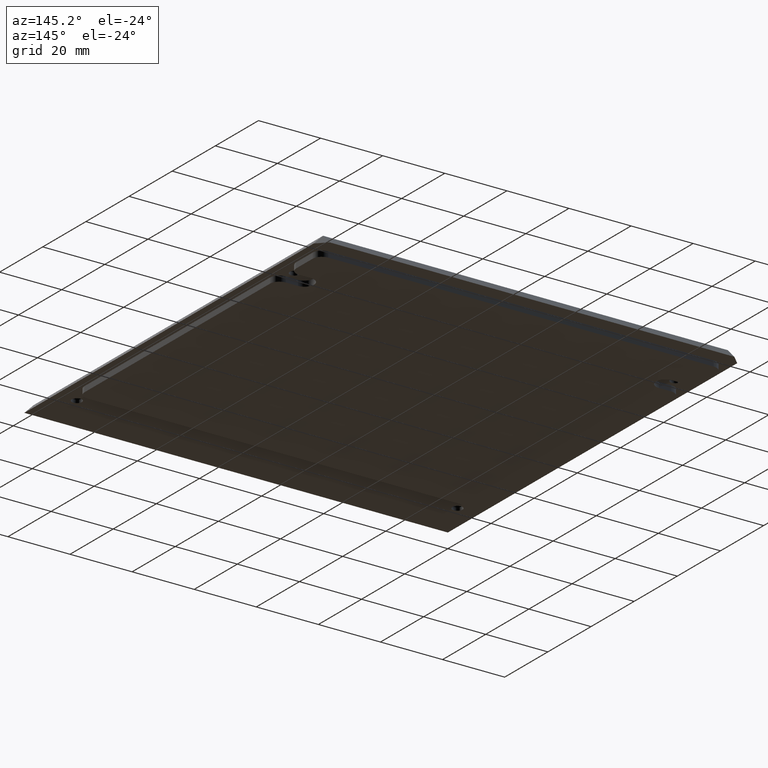
[diagram: clean part render]
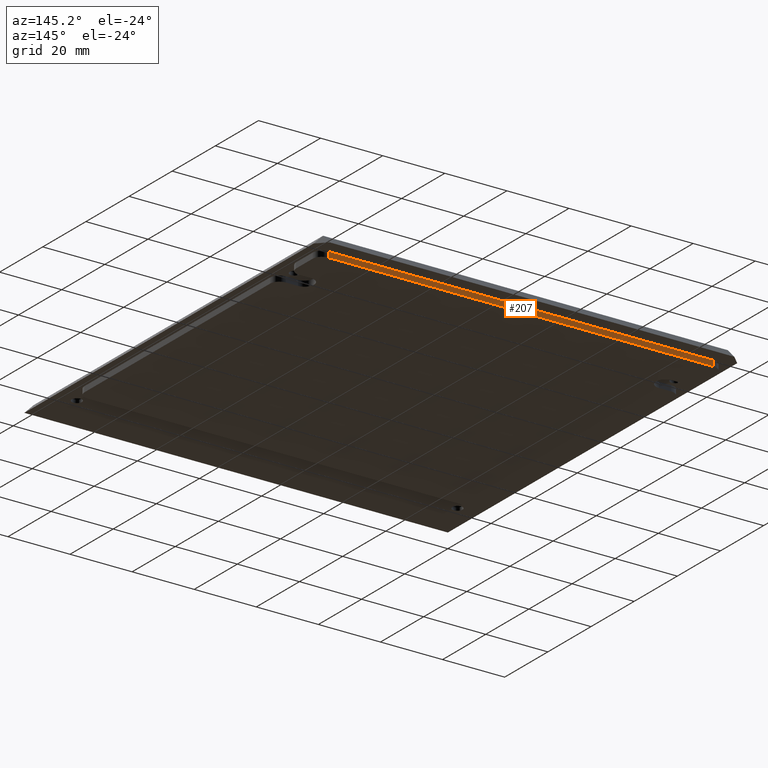
[diagram: same view with one face highlighted and labeled with its STEP entity id]
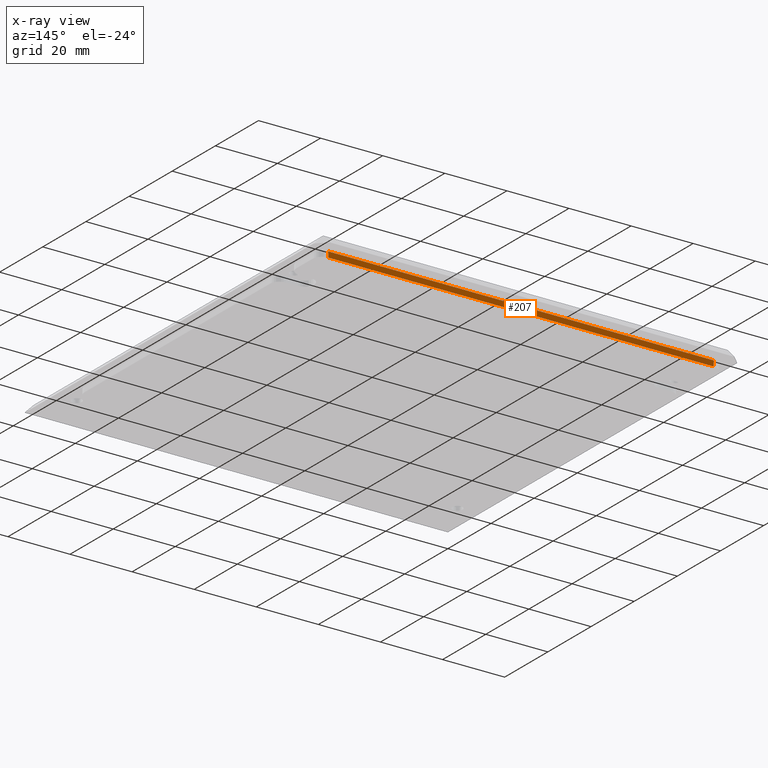
[diagram: x-ray of the same camera — body ghosted, the highlighted face saturated]
A machine part, auxiliary view. The second image highlights one B-rep face of the part: STEP entity #207.
The next image is the same camera in x-ray: the body ghosted, the highlighted face saturated — about 0% of this face is hidden behind the body in this view.
In plain terms, the highlighted planar face has unit normal (0, -1, -0).
Its self-contained STEP definition (entity closure, byte-faithful):
#39 = CARTESIAN_POINT ( 'NONE',  ( 130.2499999999999700, 132.0500000000000100, -4.780000000000000200 ) ) ;
#41 = EDGE_CURVE ( 'NONE', #533, #916, #853, .T. ) ;
#61 = AXIS2_PLACEMENT_3D ( 'NONE', #39, #1506, #1265 ) ;
#77 = EDGE_CURVE ( 'NONE', #1467, #1293, #685, .T. ) ;
#104 = DIRECTION ( 'NONE',  ( -0.0000000000000000000, -0.0000000000000000000, 1.000000000000000000 ) ) ;
#186 = PLANE ( 'NONE',  #61 ) ;
#207 = ADVANCED_FACE ( 'NONE', ( #1344 ), #186, .F. ) ;
#318 = LINE ( 'NONE', #1128, #1613 ) ;
#334 = CARTESIAN_POINT ( 'NONE',  ( 130.2499999999999700, 132.0500000000000100, -3.000000000000000000 ) ) ;
#377 = EDGE_CURVE ( 'NONE', #916, #1293, #695, .T. ) ;
#516 = VECTOR ( 'NONE', #1471, 1000.000000000000000 ) ;
#533 = VERTEX_POINT ( 'NONE', #1225 ) ;
#591 = CARTESIAN_POINT ( 'NONE',  ( 130.2499999999999700, 132.0500000000000100, -3.000000000000000000 ) ) ;
#622 = CARTESIAN_POINT ( 'NONE',  ( 130.2499999999999700, 132.0500000000000100, -4.780000000000000200 ) ) ;
#685 = LINE ( 'NONE', #622, #930 ) ;
#695 = LINE ( 'NONE', #334, #516 ) ;
#761 = EDGE_CURVE ( 'NONE', #533, #1467, #318, .T. ) ;
#819 = VECTOR ( 'NONE', #875, 1000.000000000000000 ) ;
#853 = LINE ( 'NONE', #870, #819 ) ;
#870 = CARTESIAN_POINT ( 'NONE',  ( 6.150000000000003000, 132.0500000000000100, -4.780000000000000200 ) ) ;
#875 = DIRECTION ( 'NONE',  ( -0.0000000000000000000, -0.0000000000000000000, 1.000000000000000000 ) ) ;
#916 = VERTEX_POINT ( 'NONE', #1144 ) ;
#930 = VECTOR ( 'NONE', #104, 1000.000000000000000 ) ;
#1040 = ORIENTED_EDGE ( 'NONE', *, *, #377, .T. ) ;
#1128 = CARTESIAN_POINT ( 'NONE',  ( 69.81339804469588700, 132.0500000000000100, -4.780000000000000200 ) ) ;
#1144 = CARTESIAN_POINT ( 'NONE',  ( 6.150000000000003000, 132.0500000000000100, -3.000000000000000000 ) ) ;
#1172 = ORIENTED_EDGE ( 'NONE', *, *, #761, .F. ) ;
#1191 = EDGE_LOOP ( 'NONE', ( #1040, #1561, #1172, #1504 ) ) ;
#1225 = CARTESIAN_POINT ( 'NONE',  ( 6.150000000000003000, 132.0500000000000100, -4.780000000000000200 ) ) ;
#1265 = DIRECTION ( 'NONE',  ( 0.0000000000000000000, 0.0000000000000000000, -1.000000000000000000 ) ) ;
#1293 = VERTEX_POINT ( 'NONE', #591 ) ;
#1344 = FACE_OUTER_BOUND ( 'NONE', #1191, .T. ) ;
#1383 = CARTESIAN_POINT ( 'NONE',  ( 130.2499999999999700, 132.0500000000000100, -4.780000000000000200 ) ) ;
#1467 = VERTEX_POINT ( 'NONE', #1383 ) ;
#1471 = DIRECTION ( 'NONE',  ( 1.000000000000000000, -0.0000000000000000000, -0.0000000000000000000 ) ) ;
#1504 = ORIENTED_EDGE ( 'NONE', *, *, #41, .T. ) ;
#1506 = DIRECTION ( 'NONE',  ( 0.0000000000000000000, -1.000000000000000000, -0.0000000000000000000 ) ) ;
#1561 = ORIENTED_EDGE ( 'NONE', *, *, #77, .F. ) ;
#1613 = VECTOR ( 'NONE', #1623, 1000.000000000000000 ) ;
#1623 = DIRECTION ( 'NONE',  ( 1.000000000000000000, -0.0000000000000000000, -0.0000000000000000000 ) ) ;